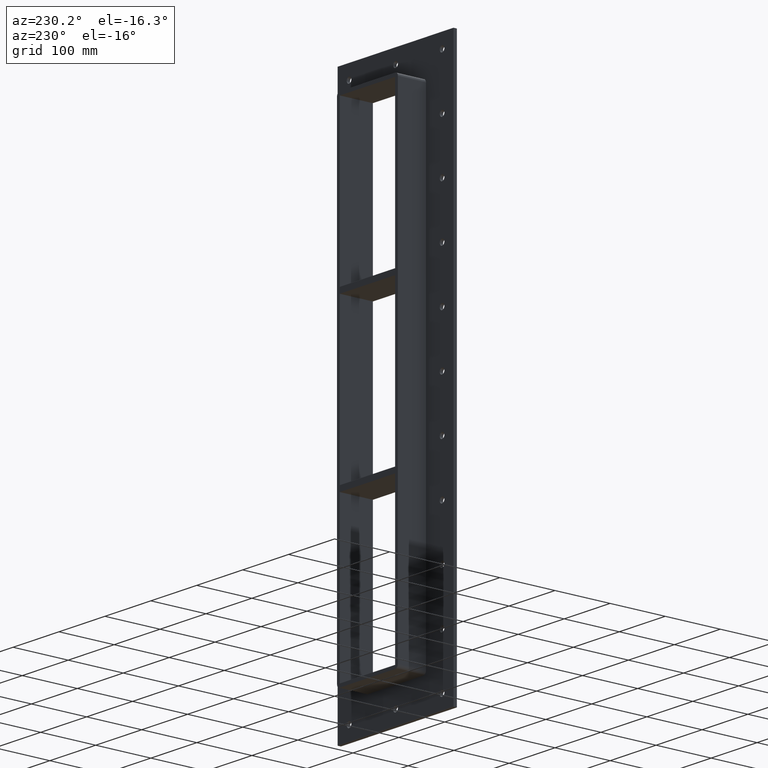
[diagram: clean part render]
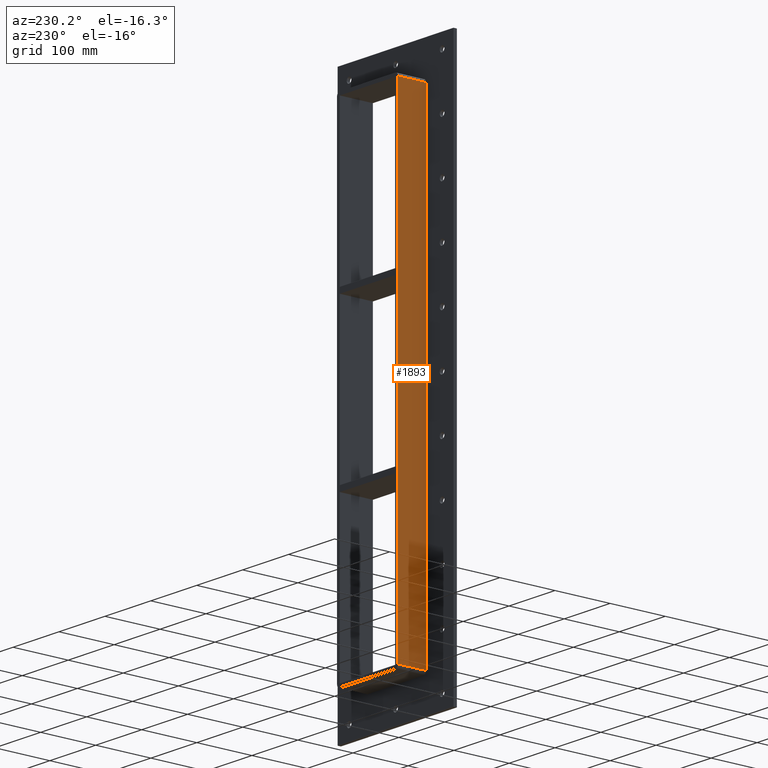
[diagram: same view with one face highlighted and labeled with its STEP entity id]
A machine part, auxiliary view. The second image highlights one B-rep face of the part: STEP entity #1893.
In plain terms, the highlighted planar face has unit normal (-1, 0, 0).
Its self-contained STEP definition (entity closure, byte-faithful):
#1150=CARTESIAN_POINT('',(-66.25,6.000000000000001,-427.00000000000017));
#1151=VERTEX_POINT('',#1150);
#1201=CARTESIAN_POINT('',(-66.25,6.000000000000001,426.99999999999989));
#1202=VERTEX_POINT('',#1201);
#1210=CARTESIAN_POINT('',(-66.25,6.000000000000001,-427.00000000000017));
#1211=DIRECTION('',(0.0,0.0,1.0));
#1212=VECTOR('',#1211,854.00000000000011);
#1213=LINE('',#1210,#1212);
#1214=EDGE_CURVE('',#1151,#1202,#1213,.T.);
#1851=CARTESIAN_POINT('',(-66.25,57.0,-427.00000000000017));
#1852=VERTEX_POINT('',#1851);
#1853=CARTESIAN_POINT('',(-66.25,6.000000000000001,-427.00000000000017));
#1854=DIRECTION('',(0.0,1.0,0.0));
#1855=VECTOR('',#1854,51.0);
#1856=LINE('',#1853,#1855);
#1857=EDGE_CURVE('',#1151,#1852,#1856,.T.);
#1870=CARTESIAN_POINT('',(-66.25,0.0,-433.00000000000011));
#1871=DIRECTION('',(-1.0,0.0,0.0));
#1872=DIRECTION('',(0.0,0.0,1.0));
#1873=AXIS2_PLACEMENT_3D('',#1870,#1871,#1872);
#1874=PLANE('',#1873);
#1875=ORIENTED_EDGE('',*,*,#1214,.T.);
#1876=CARTESIAN_POINT('',(-66.25,57.0,426.99999999999989));
#1877=VERTEX_POINT('',#1876);
#1878=CARTESIAN_POINT('',(-66.25,57.0,426.99999999999989));
#1879=DIRECTION('',(0.0,-1.0,0.0));
#1880=VECTOR('',#1879,51.0);
#1881=LINE('',#1878,#1880);
#1882=EDGE_CURVE('',#1877,#1202,#1881,.T.);
#1883=ORIENTED_EDGE('',*,*,#1882,.F.);
#1884=CARTESIAN_POINT('',(-66.25,57.0,-427.00000000000017));
#1885=DIRECTION('',(0.0,0.0,1.0));
#1886=VECTOR('',#1885,854.0);
#1887=LINE('',#1884,#1886);
#1888=EDGE_CURVE('',#1852,#1877,#1887,.T.);
#1889=ORIENTED_EDGE('',*,*,#1888,.F.);
#1890=ORIENTED_EDGE('',*,*,#1857,.F.);
#1891=EDGE_LOOP('',(#1875,#1883,#1889,#1890));
#1892=FACE_OUTER_BOUND('',#1891,.T.);
#1893=ADVANCED_FACE('',(#1892),#1874,.T.);